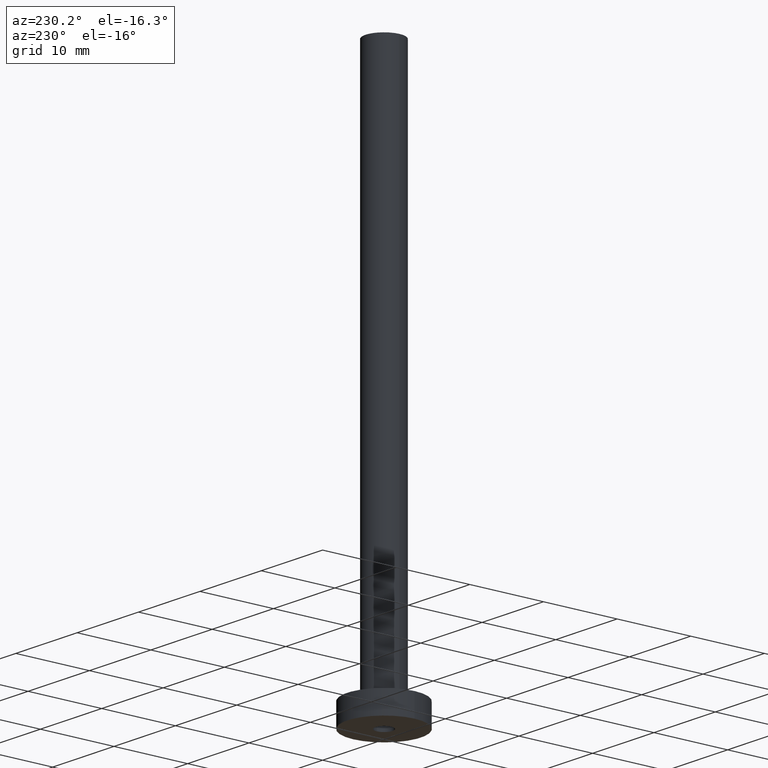
[diagram: clean part render]
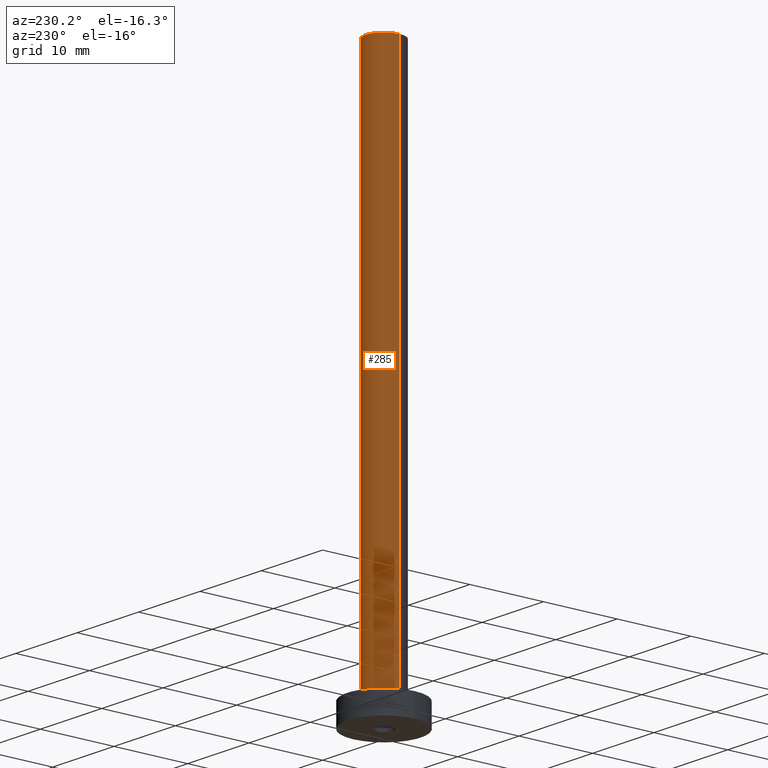
[diagram: same view with one face highlighted and labeled with its STEP entity id]
A machine part, auxiliary view. The second image highlights one B-rep face of the part: STEP entity #285.
In plain terms, the highlighted cylindrical surface (edge-blend (fillet) strip) has radius 2.5 mm, axis along (-0, -0, -1).
Its self-contained STEP definition (entity closure, byte-faithful):
#9 = DIRECTION ( 'NONE',  ( 1.000000000000000000, 0.000000000000000000, 0.000000000000000000 ) ) ;
#11 = VERTEX_POINT ( 'NONE', #105 ) ;
#24 = FACE_OUTER_BOUND ( 'NONE', #86, .T. ) ;
#38 = AXIS2_PLACEMENT_3D ( 'NONE', #99, #116, #9 ) ;
#78 = VECTOR ( 'NONE', #345, 1000.000000000000000 ) ;
#84 = DIRECTION ( 'NONE',  ( 1.000000000000000000, 0.000000000000000000, 0.000000000000000000 ) ) ;
#86 = EDGE_LOOP ( 'NONE', ( #326, #186, #132, #269 ) ) ;
#97 = CARTESIAN_POINT ( 'NONE',  ( 2.500000000000000000, 3.061616997868383141E-16, 3.299999999999997158 ) ) ;
#98 = EDGE_CURVE ( 'NONE', #256, #11, #329, .T. ) ;
#99 = CARTESIAN_POINT ( 'NONE',  ( 0.000000000000000000, 0.000000000000000000, 75.00000000000001421 ) ) ;
#105 = CARTESIAN_POINT ( 'NONE',  ( -2.500000000000000000, 0.000000000000000000, 3.299999999999997158 ) ) ;
#116 = DIRECTION ( 'NONE',  ( 0.000000000000000000, 0.000000000000000000, 1.000000000000000000 ) ) ;
#120 = CYLINDRICAL_SURFACE ( 'NONE', #385, 2.500000000000000000 ) ;
#130 = AXIS2_PLACEMENT_3D ( 'NONE', #205, #131, #84 ) ;
#131 = DIRECTION ( 'NONE',  ( 0.000000000000000000, 0.000000000000000000, 1.000000000000000000 ) ) ;
#132 = ORIENTED_EDGE ( 'NONE', *, *, #98, .T. ) ;
#134 = CARTESIAN_POINT ( 'NONE',  ( 2.500000000000000000, 3.061616997868383141E-16, 75.00000000000001421 ) ) ;
#135 = CARTESIAN_POINT ( 'NONE',  ( -2.500000000000000000, 0.000000000000000000, 75.00000000000001421 ) ) ;
#140 = EDGE_CURVE ( 'NONE', #292, #256, #335, .T. ) ;
#172 = DIRECTION ( 'NONE',  ( -0.000000000000000000, -0.000000000000000000, -1.000000000000000000 ) ) ;
#185 = CARTESIAN_POINT ( 'NONE',  ( -2.500000000000000000, 0.000000000000000000, 75.00000000000001421 ) ) ;
#186 = ORIENTED_EDGE ( 'NONE', *, *, #140, .T. ) ;
#188 = CIRCLE ( 'NONE', #38, 2.500000000000000000 ) ;
#205 = CARTESIAN_POINT ( 'NONE',  ( 0.000000000000000000, 0.000000000000000000, 3.299999999999997158 ) ) ;
#212 = VECTOR ( 'NONE', #276, 1000.000000000000000 ) ;
#221 = EDGE_CURVE ( 'NONE', #420, #11, #299, .T. ) ;
#256 = VERTEX_POINT ( 'NONE', #97 ) ;
#265 = CARTESIAN_POINT ( 'NONE',  ( 2.500000000000000000, 3.061616997868383141E-16, 75.00000000000001421 ) ) ;
#269 = ORIENTED_EDGE ( 'NONE', *, *, #221, .F. ) ;
#276 = DIRECTION ( 'NONE',  ( -0.000000000000000000, -0.000000000000000000, -1.000000000000000000 ) ) ;
#285 = ADVANCED_FACE ( 'NONE', ( #24 ), #120, .T. ) ;
#292 = VERTEX_POINT ( 'NONE', #265 ) ;
#297 = DIRECTION ( 'NONE',  ( -1.000000000000000000, 0.000000000000000000, 0.000000000000000000 ) ) ;
#299 = LINE ( 'NONE', #135, #78 ) ;
#326 = ORIENTED_EDGE ( 'NONE', *, *, #381, .F. ) ;
#329 = CIRCLE ( 'NONE', #130, 2.500000000000000000 ) ;
#335 = LINE ( 'NONE', #134, #212 ) ;
#345 = DIRECTION ( 'NONE',  ( -0.000000000000000000, -0.000000000000000000, -1.000000000000000000 ) ) ;
#381 = EDGE_CURVE ( 'NONE', #292, #420, #188, .T. ) ;
#385 = AXIS2_PLACEMENT_3D ( 'NONE', #452, #172, #297 ) ;
#420 = VERTEX_POINT ( 'NONE', #185 ) ;
#452 = CARTESIAN_POINT ( 'NONE',  ( 0.000000000000000000, 0.000000000000000000, 75.00000000000001421 ) ) ;